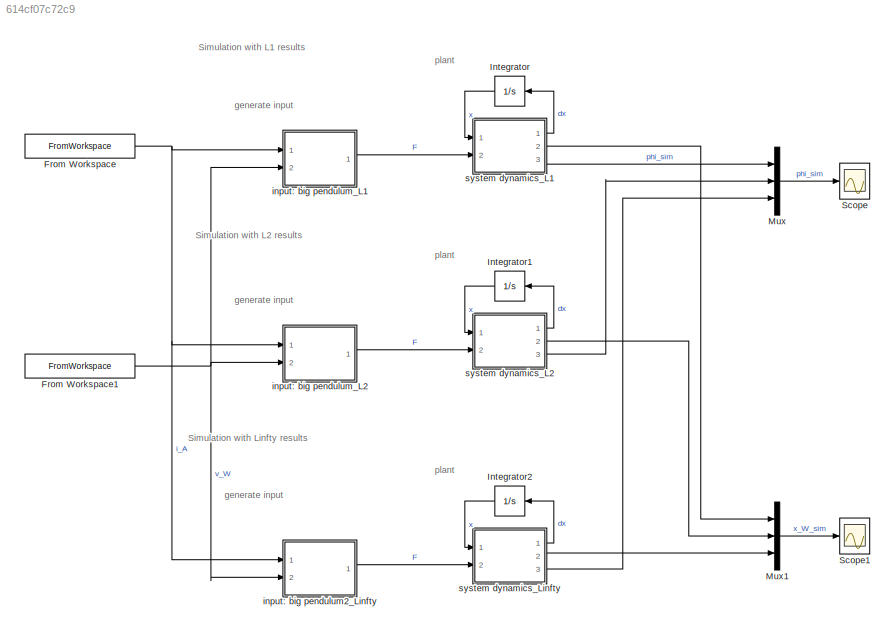
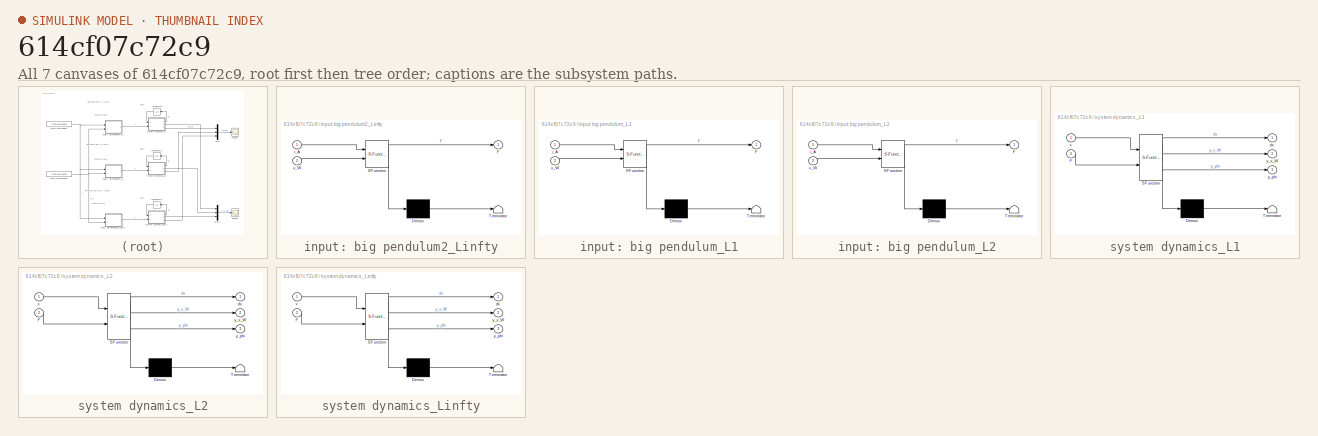
[diagram: thumbnail index - all 7 canvases of the model, root first then tree order]
MODEL slx_614cf07c72c9
KIND model
CONFIG AbsTol = auto
CONFIG EnableMultiTasking = off
CONFIG FixedStep = auto
CONFIG MaxStep = 10e-3
CONFIG MinStep = auto
CONFIG RelTol = 1e-3
CONFIG SampleTimeConstraint = Unconstrained
CONFIG Solver = VariableStepAuto
CONFIG SolverName = VariableStepAuto
CONFIG StartTime = 0.0
CONFIG StopTime = 10.0
BLOCK [FromWorkspace] From Workspace
  SampleTime = 0
  VariableName = [t_measurements_3, i_A]
  ZeroCross = on
BLOCK [FromWorkspace] From Workspace1
  SampleTime = 0
  VariableName = [t_measurements_3, v_W]
  ZeroCross = on
BLOCK [Integrator] Integrator
  InitialCondition = x0
  Ports = [1, 1]
BLOCK [Integrator] Integrator1
  InitialCondition = x0
  Ports = [1, 1]
BLOCK [Integrator] Integrator2
  InitialCondition = x0
  Ports = [1, 1]
BLOCK [Mux] Mux
  DisplayOption = bar
  Inputs = 3
  Ports = [3, 1]
BLOCK [Mux] Mux1
  DisplayOption = bar
  Inputs = 3
  Ports = [3, 1]
BLOCK [Scope] Scope
  Floating = off
  NumInputPorts = 1
  Ports = [1]
  ScopeSpecificationString = Simulink.scopes.TimeScopeBlockCfg('CurrentConfiguration', extmgr.ConfigurationSet(extmgr.Configuration('Core','General UI',true),extmgr.Configuration('Core','Source UI',true),extmgr.Configuration('Sources','WiredSimulink',true,'DataLogging',true,'DataLoggingVariableName','phi_simu','DataLoggingSaveFormat','StructureWithTime'),extmgr.Configuration('Visuals','Time Domain',true,'SerializedDisplays',{...<+1613ch>
BLOCK [Scope] Scope1
  Floating = off
  NumInputPorts = 1
  Ports = [1]
  ScopeSpecificationString = Simulink.scopes.TimeScopeBlockCfg('CurrentConfiguration', extmgr.ConfigurationSet(extmgr.Configuration('Core','General UI',true),extmgr.Configuration('Core','Source UI',true),extmgr.Configuration('Sources','WiredSimulink',true,'DataLogging',true,'DataLoggingVariableName','x_W_simu','DataLoggingSaveFormat','StructureWithTime'),extmgr.Configuration('Visuals','Time Domain',true,'SerializedDisplays',{...<+1613ch>
BLOCK [SubSystem] input: big pendulum2_Linfty
  ErrorFcn = Stateflow.Translate.translate
  PermitHierarchicalResolution = ExplicitOnly
  Ports = [2, 1]
  RequestExecContextInheritance = off
  SFBlockType = MATLAB Function
  TreatAsAtomicUnit = on
BLOCK [Demux] input: big pendulum2_Linfty/ Demux 
  Outputs = 1
  Ports = [1, 1]
BLOCK [S-Function] input: big pendulum2_Linfty/ SFunction 
  EnableBusSupport = on
  FunctionName = sf_sfun
  Parameters = params_Linfty
  PortCounts = [2 2]
  Ports = [2, 2]
  SFcnIsStateOwnerBlock = off
  SFunctionDeploymentMode = off
  Tag = Stateflow S-Function OAC_LA_Ass1_Task2_simu_R2017b 6
BLOCK [Terminator] input: big pendulum2_Linfty/ Terminator 
BLOCK [Outport] input: big pendulum2_Linfty/F
  IconDisplay = Port number
BLOCK [Inport] input: big pendulum2_Linfty/i_A
  IconDisplay = Port number
BLOCK [Inport] input: big pendulum2_Linfty/v_W
  IconDisplay = Port number
  Port = 2
BLOCK [SubSystem] input: big pendulum_L1
  ErrorFcn = Stateflow.Translate.translate
  PermitHierarchicalResolution = ExplicitOnly
  Ports = [2, 1]
  RequestExecContextInheritance = off
  SFBlockType = MATLAB Function
  TreatAsAtomicUnit = on
BLOCK [Demux] input: big pendulum_L1/ Demux 
  Outputs = 1
  Ports = [1, 1]
BLOCK [S-Function] input: big pendulum_L1/ SFunction 
  EnableBusSupport = on
  FunctionName = sf_sfun
  Parameters = params_L1
  PortCounts = [2 2]
  Ports = [2, 2]
  SFcnIsStateOwnerBlock = off
  SFunctionDeploymentMode = off
  Tag = Stateflow S-Function OAC_LA_Ass1_Task2_simu_R2017b 1
BLOCK [Terminator] input: big pendulum_L1/ Terminator 
BLOCK [Outport] input: big pendulum_L1/F
  IconDisplay = Port number
BLOCK [Inport] input: big pendulum_L1/i_A
  IconDisplay = Port number
BLOCK [Inport] input: big pendulum_L1/v_W
  IconDisplay = Port number
  Port = 2
BLOCK [SubSystem] input: big pendulum_L2
  ErrorFcn = Stateflow.Translate.translate
  PermitHierarchicalResolution = ExplicitOnly
  Ports = [2, 1]
  RequestExecContextInheritance = off
  SFBlockType = MATLAB Function
  TreatAsAtomicUnit = on
BLOCK [Demux] input: big pendulum_L2/ Demux 
  Outputs = 1
  Ports = [1, 1]
BLOCK [S-Function] input: big pendulum_L2/ SFunction 
  EnableBusSupport = on
  FunctionName = sf_sfun
  Parameters = params_L2
  PortCounts = [2 2]
  Ports = [2, 2]
  SFcnIsStateOwnerBlock = off
  SFunctionDeploymentMode = off
  Tag = Stateflow S-Function OAC_LA_Ass1_Task2_simu_R2017b 5
BLOCK [Terminator] input: big pendulum_L2/ Terminator 
BLOCK [Outport] input: big pendulum_L2/F
  IconDisplay = Port number
BLOCK [Inport] input: big pendulum_L2/i_A
  IconDisplay = Port number
BLOCK [Inport] input: big pendulum_L2/v_W
  IconDisplay = Port number
  Port = 2
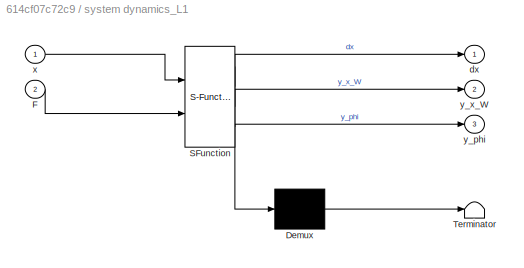
BLOCK [SubSystem] system dynamics_L1
  ErrorFcn = Stateflow.Translate.translate
  PermitHierarchicalResolution = ExplicitOnly
  Ports = [2, 3]
  RequestExecContextInheritance = off
  SFBlockType = MATLAB Function
  TreatAsAtomicUnit = on
BLOCK [Demux] system dynamics_L1/ Demux 
  Outputs = 1
  Ports = [1, 1]
BLOCK [S-Function] system dynamics_L1/ SFunction 
  EnableBusSupport = on
  FunctionName = sf_sfun
  Parameters = g,l,params_L1
  PortCounts = [2 4]
  Ports = [2, 4]
  SFcnIsStateOwnerBlock = off
  SFunctionDeploymentMode = off
  Tag = Stateflow S-Function OAC_LA_Ass1_Task2_simu_R2017b 2
BLOCK [Terminator] system dynamics_L1/ Terminator 
BLOCK [Inport] system dynamics_L1/F
  IconDisplay = Port number
  Port = 2
BLOCK [Outport] system dynamics_L1/dx
  IconDisplay = Port number
BLOCK [Inport] system dynamics_L1/x
  IconDisplay = Port number
BLOCK [Outport] system dynamics_L1/y_phi
  IconDisplay = Port number
  Port = 3
BLOCK [Outport] system dynamics_L1/y_x_W
  IconDisplay = Port number
  Port = 2
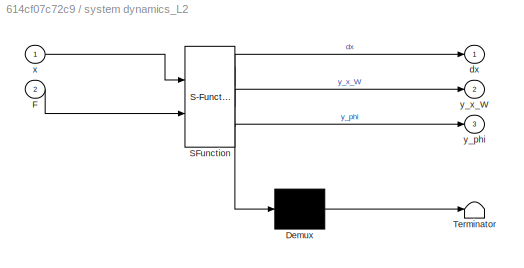
BLOCK [SubSystem] system dynamics_L2
  ErrorFcn = Stateflow.Translate.translate
  PermitHierarchicalResolution = ExplicitOnly
  Ports = [2, 3]
  RequestExecContextInheritance = off
  SFBlockType = MATLAB Function
  TreatAsAtomicUnit = on
BLOCK [Demux] system dynamics_L2/ Demux 
  Outputs = 1
  Ports = [1, 1]
BLOCK [S-Function] system dynamics_L2/ SFunction 
  EnableBusSupport = on
  FunctionName = sf_sfun
  Parameters = g,l,params_L2
  PortCounts = [2 4]
  Ports = [2, 4]
  SFcnIsStateOwnerBlock = off
  SFunctionDeploymentMode = off
  Tag = Stateflow S-Function OAC_LA_Ass1_Task2_simu_R2017b 3
BLOCK [Terminator] system dynamics_L2/ Terminator 
BLOCK [Inport] system dynamics_L2/F
  IconDisplay = Port number
  Port = 2
BLOCK [Outport] system dynamics_L2/dx
  IconDisplay = Port number
BLOCK [Inport] system dynamics_L2/x
  IconDisplay = Port number
BLOCK [Outport] system dynamics_L2/y_phi
  IconDisplay = Port number
  Port = 3
BLOCK [Outport] system dynamics_L2/y_x_W
  IconDisplay = Port number
  Port = 2
BLOCK [SubSystem] system dynamics_Linfty
  ErrorFcn = Stateflow.Translate.translate
  PermitHierarchicalResolution = ExplicitOnly
  Ports = [2, 3]
  RequestExecContextInheritance = off
  SFBlockType = MATLAB Function
  TreatAsAtomicUnit = on
BLOCK [Demux] system dynamics_Linfty/ Demux 
  Outputs = 1
  Ports = [1, 1]
BLOCK [S-Function] system dynamics_Linfty/ SFunction 
  EnableBusSupport = on
  FunctionName = sf_sfun
  Parameters = g,l,params_Linfty
  PortCounts = [2 4]
  Ports = [2, 4]
  SFcnIsStateOwnerBlock = off
  SFunctionDeploymentMode = off
  Tag = Stateflow S-Function OAC_LA_Ass1_Task2_simu_R2017b 4
BLOCK [Terminator] system dynamics_Linfty/ Terminator 
BLOCK [Inport] system dynamics_Linfty/F
  IconDisplay = Port number
  Port = 2
BLOCK [Outport] system dynamics_Linfty/dx
  IconDisplay = Port number
BLOCK [Inport] system dynamics_Linfty/x
  IconDisplay = Port number
BLOCK [Outport] system dynamics_Linfty/y_phi
  IconDisplay = Port number
  Port = 3
BLOCK [Outport] system dynamics_Linfty/y_x_W
  IconDisplay = Port number
  Port = 2
ANNOTATION (root): Simulation with L1 results
ANNOTATION (root): Simulation with L2 results
ANNOTATION (root): Simulation with Linfty results
ANNOTATION (root): generate input
ANNOTATION (root): plant
NET From Workspace1:1 -> input: big pendulum2_Linfty:2, input: big pendulum_L1:2, input: big pendulum_L2:2
NET From Workspace:1 -> input: big pendulum2_Linfty:1, input: big pendulum_L1:1, input: big pendulum_L2:1
LINE Integrator1:1 -> system dynamics_L2:1
LINE Integrator2:1 -> system dynamics_Linfty:1
LINE Integrator:1 -> system dynamics_L1:1
LINE Mux1:1 -> Scope1:1
LINE Mux:1 -> Scope:1
LINE input: big pendulum2_Linfty:1 -> system dynamics_Linfty:2
LINE input: big pendulum_L1:1 -> system dynamics_L1:2
LINE input: big pendulum_L2:1 -> system dynamics_L2:2
LINE system dynamics_L1:1 -> Integrator:1
LINE system dynamics_L1:2 -> Mux1:1
LINE system dynamics_L1:3 -> Mux:1
LINE system dynamics_L2:1 -> Integrator1:1
LINE system dynamics_L2:2 -> Mux1:2
LINE system dynamics_L2:3 -> Mux:2
LINE system dynamics_Linfty:1 -> Integrator2:1
LINE system dynamics_Linfty:2 -> Mux1:3
LINE system dynamics_Linfty:3 -> Mux:3
note: NET lines group one-source signal fan-out (src -> all destinations, sorted); 1:1 wires keep LINE
CHART input: big pendulum_L1 states=1 transitions=1
  STATE_LABEL 'eML_blk_kernel()'
  STATE_LABEL 'SCRIPT:\nfunction F = fcn(i_A, v_W, params_L1)\n    \n    V = params_L1(3);\n    k1 = params_L1(4);\n\n    F = V*i_A - k1*v_W;\n\nend\n'
CHART system dynamics_L1 states=1 transitions=1
  STATE_LABEL 'eML_blk_kernel()'
  STATE_LABEL 'SCRIPT:\nfunction [dx, y_x_W, y_phi] = fcn(x,F,params_L1,l,g)\n\n    ms = params_L1(1);\n    mw = params_L1(2);\n    \n    x_W = x(1);\n    phi = x(2);\n    v_W = x(3);\n    omega = x(4);\n\n    dx_W = v_W;\n    dphi = omega;\n    dv_W = 1/( mw + ms*(1-(cos(phi))^2) ) * ( F + ms*l*omega^2*sin(phi) ...\n        - ms*g*sin(phi)*cos(phi) );\n    domega = 1/( l * ( 1 - ms/(mw+ms)*(cos(phi))^2 ) ) * ( g*sin(phi) - .....<+166ch>'
CHART system dynamics_L2 states=1 transitions=1
  STATE_LABEL 'eML_blk_kernel()'
  STATE_LABEL 'SCRIPT:\nfunction [dx, y_x_W, y_phi] = fcn(x,F,params_L2,l,g)\n\n    ms = params_L2(1);\n    mw = params_L2(2);\n    \n    x_W = x(1);\n    phi = x(2);\n    v_W = x(3);\n    omega = x(4);\n\n    dx_W = v_W;\n    dphi = omega;\n    dv_W = 1/( mw + ms*(1-(cos(phi))^2) ) * ( F + ms*l*omega^2*sin(phi) ...\n        - ms*g*sin(phi)*cos(phi) );\n    domega = 1/( l * ( 1 - ms/(mw+ms)*(cos(phi))^2 ) ) * ( g*sin(phi) - .....<+166ch>'
CHART system dynamics_Linfty states=1 transitions=1
  STATE_LABEL 'eML_blk_kernel()'
  STATE_LABEL 'SCRIPT:\nfunction [dx, y_x_W, y_phi] = fcn(x,F,params_Linfty,l,g)\n\n    ms = params_Linfty(1);\n    mw = params_Linfty(2);\n    \n    x_W = x(1);\n    phi = x(2);\n    v_W = x(3);\n    omega = x(4);\n\n    dx_W = v_W;\n    dphi = omega;\n    dv_W = 1/( mw + ms*(1-(cos(phi))^2) ) * ( F + ms*l*omega^2*sin(phi) ...\n        - ms*g*sin(phi)*cos(phi) );\n    domega = 1/( l * ( 1 - ms/(mw+ms)*(cos(phi))^2 ) ) * ( g*s...<+178ch>'
CHART input: big pendulum_L2 states=1 transitions=1
  STATE_LABEL 'eML_blk_kernel()'
  STATE_LABEL 'SCRIPT:\nfunction F = fcn(i_A, v_W, params_L2)\n    \n    V = params_L2(3);\n    k1 = params_L2(4);\n\n    F = V*i_A - k1*v_W;\n\nend\n'
CHART input: big pendulum2_Linfty states=1 transitions=1
  STATE_LABEL 'eML_blk_kernel()'
  STATE_LABEL 'SCRIPT:\nfunction F = fcn(i_A, v_W, params_Linfty)\n    \n    V = params_Linfty(3);\n    k1 = params_Linfty(4);\n\n    F = V*i_A - k1*v_W;\n\nend\n'
